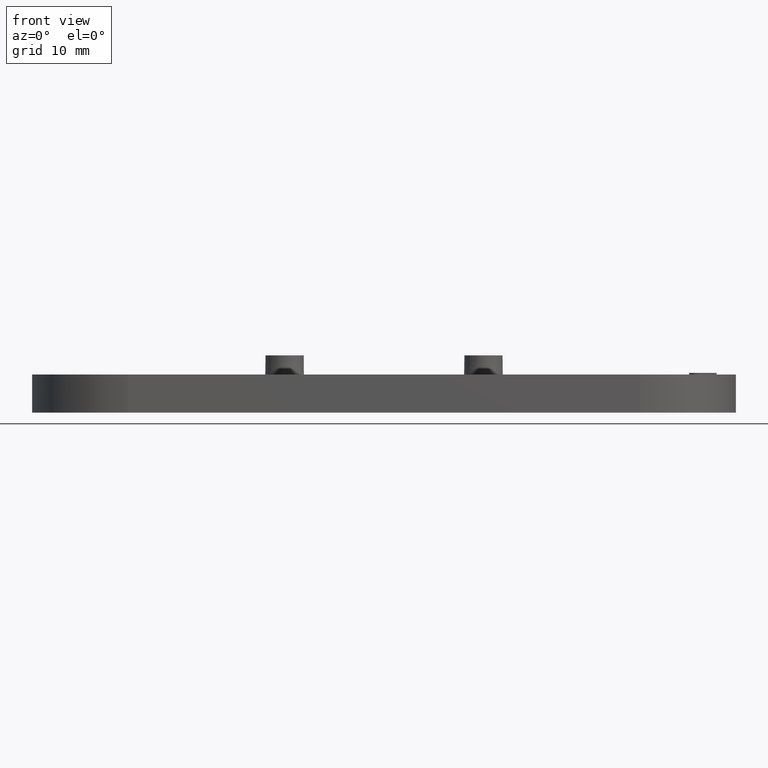
[diagram: clean part render]
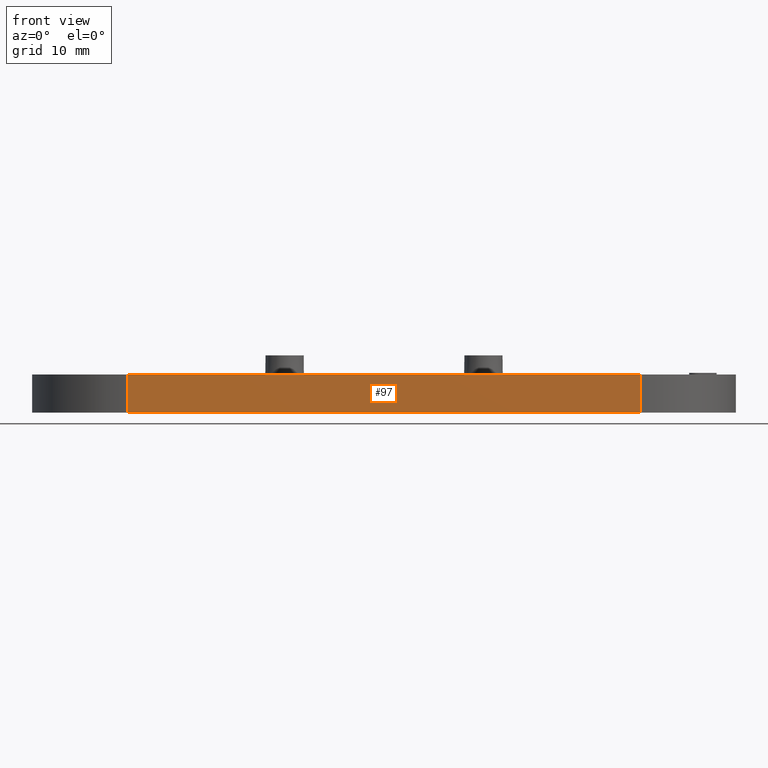
[diagram: same view with one face highlighted and labeled with its STEP entity id]
A machine part, front view. The second image highlights one B-rep face of the part: STEP entity #97.
In plain terms, the highlighted planar face has unit normal (0, 1, -0).
Its self-contained STEP definition (entity closure, byte-faithful):
#97 = ADVANCED_FACE( '', ( #455 ), #456, .F. );
#455 = FACE_OUTER_BOUND( '', #1079, .T. );
#456 = PLANE( '', #1080 );
#1079 = EDGE_LOOP( '', ( #2011, #2012, #2013, #2014 ) );
#1080 = AXIS2_PLACEMENT_3D( '', #2015, #2016, #2017 );
#2011 = ORIENTED_EDGE( '', *, *, #3930, .T. );
#2012 = ORIENTED_EDGE( '', *, *, #4210, .F. );
#2013 = ORIENTED_EDGE( '', *, *, #4106, .F. );
#2014 = ORIENTED_EDGE( '', *, *, #3956, .T. );
#2015 = CARTESIAN_POINT( '', ( 33.5000000000000, -12.5000000000000, -1.31124088366755E-014 ) );
#2016 = DIRECTION( '', ( 0.000000000000000, 1.00000000000000, -6.12303176911189E-017 ) );
#2017 = DIRECTION( '', ( 1.00000000000000, 0.000000000000000, 0.000000000000000 ) );
#3930 = EDGE_CURVE( '', #4663, #4671, #4673, .T. );
#3956 = EDGE_CURVE( '', #4724, #4663, #4725, .T. );
#4106 = EDGE_CURVE( '', #4724, #5014, #5015, .T. );
#4210 = EDGE_CURVE( '', #5014, #4671, #5218, .T. );
#4663 = VERTEX_POINT( '', #5880 );
#4671 = VERTEX_POINT( '', #5889 );
#4673 = LINE( '', #5891, #5892 );
#4724 = VERTEX_POINT( '', #5960 );
#4725 = LINE( '', #5961, #5962 );
#5014 = VERTEX_POINT( '', #6366 );
#5015 = LINE( '', #6367, #6368 );
#5218 = LINE( '', #6663, #6664 );
#5880 = CARTESIAN_POINT( '', ( 33.5000000000000, -12.5000000000000, 4.99999999999998 ) );
#5889 = CARTESIAN_POINT( '', ( -33.5000000000000, -12.5000000000000, 4.99999999999998 ) );
#5891 = CARTESIAN_POINT( '', ( 33.5000000000000, -12.5000000000000, 4.99999999999998 ) );
#5892 = VECTOR( '', #7714, 1000.00000000000 );
#5960 = CARTESIAN_POINT( '', ( 33.5000000000000, -12.5000000000000, -1.31124088366755E-014 ) );
#5961 = CARTESIAN_POINT( '', ( 33.5000000000000, -12.5000000000000, -1.31124088366755E-014 ) );
#5962 = VECTOR( '', #7756, 1000.00000000000 );
#6366 = CARTESIAN_POINT( '', ( -33.5000000000000, -12.5000000000000, -1.31124088366755E-014 ) );
#6367 = CARTESIAN_POINT( '', ( 33.5000000000000, -12.5000000000000, -1.31124088366755E-014 ) );
#6368 = VECTOR( '', #7974, 1000.00000000000 );
#6663 = CARTESIAN_POINT( '', ( -33.5000000000000, -12.5000000000000, -1.31124088366755E-014 ) );
#6664 = VECTOR( '', #8100, 1000.00000000000 );
#7714 = DIRECTION( '', ( -1.00000000000000, 0.000000000000000, 0.000000000000000 ) );
#7756 = DIRECTION( '', ( 0.000000000000000, 6.12303176911189E-017, 1.00000000000000 ) );
#7974 = DIRECTION( '', ( -1.00000000000000, 0.000000000000000, 0.000000000000000 ) );
#8100 = DIRECTION( '', ( 0.000000000000000, 6.12303176911189E-017, 1.00000000000000 ) );